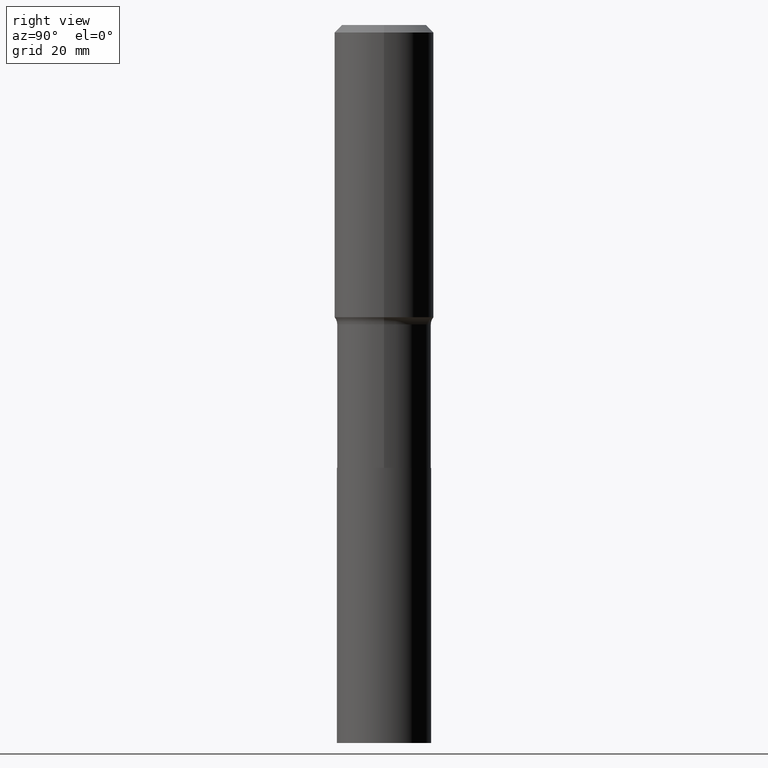
[diagram: clean part render]
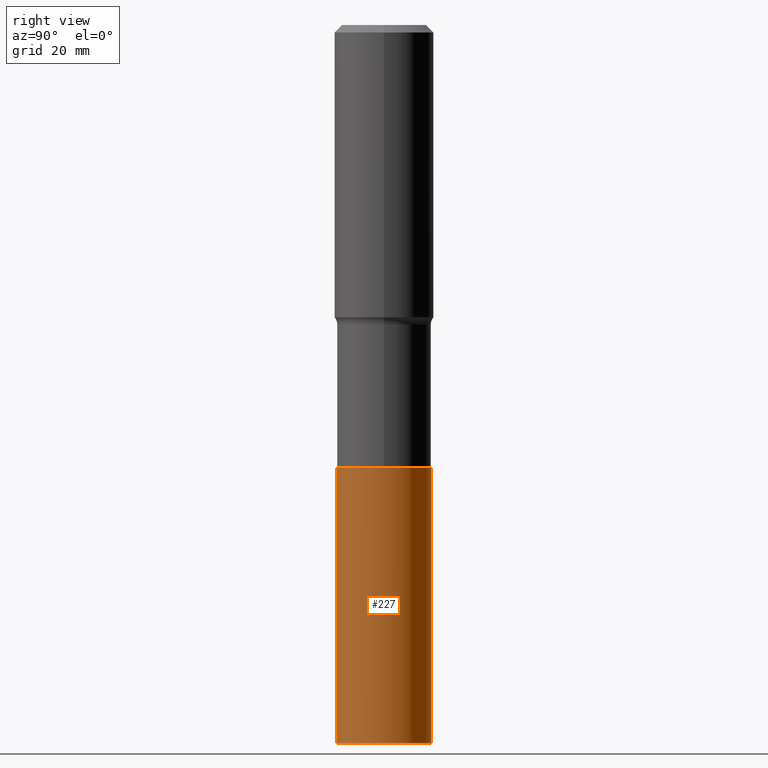
[diagram: same view with one face highlighted and labeled with its STEP entity id]
A machine part, right view. The second image highlights one B-rep face of the part: STEP entity #227.
In plain terms, the highlighted cylindrical surface (partial cylindrical patch) has radius 8.5331 mm, axis along (-0, 0, 1).
Its self-contained STEP definition (entity closure, byte-faithful):
#6 = FACE_OUTER_BOUND ( 'NONE', #354, .T. ) ;
#8 = LINE ( 'NONE', #434, #277 ) ;
#9 = CARTESIAN_POINT ( 'NONE',  ( -2.345926311568623595E-15, -0.3359500000000110176, -3.157099999999998907 ) ) ;
#12 = AXIS2_PLACEMENT_3D ( 'NONE', #156, #226, #114 ) ;
#24 = DIRECTION ( 'NONE',  ( -6.982962677686265133E-15, -1.000000000000000000, 3.252684022817994463E-15 ) ) ;
#27 = VERTEX_POINT ( 'NONE', #66 ) ;
#61 = DIRECTION ( 'NONE',  ( -2.445143667233141665E-29, 3.491946956328162536E-15, 1.000000000000000000 ) ) ;
#66 = CARTESIAN_POINT ( 'NONE',  ( 2.387068320786157736E-15, 0.3359499999999820963, -5.118100000000003647 ) ) ;
#72 = AXIS2_PLACEMENT_3D ( 'NONE', #261, #433, #200 ) ;
#79 = EDGE_CURVE ( 'NONE', #239, #27, #392, .T. ) ;
#81 = CARTESIAN_POINT ( 'NONE',  ( 2.387068320786182191E-15, 0.3359499999999890352, -3.157100000000001128 ) ) ;
#89 = ORIENTED_EDGE ( 'NONE', *, *, #79, .T. ) ;
#113 = DIRECTION ( 'NONE',  ( -2.445143667233141665E-29, 3.491946956328162536E-15, 1.000000000000000000 ) ) ;
#114 = DIRECTION ( 'NONE',  ( -6.982962677686265133E-15, -1.000000000000000000, 3.252684022817994463E-15 ) ) ;
#121 = EDGE_CURVE ( 'NONE', #239, #278, #330, .T. ) ;
#144 = CARTESIAN_POINT ( 'NONE',  ( 1.251551629945129188E-28, -1.787066371622123093E-14, -5.118100000000002758 ) ) ;
#156 = CARTESIAN_POINT ( 'NONE',  ( 7.720589568007094249E-29, -1.102295573486169565E-14, -3.157100000000000239 ) ) ;
#157 = ORIENTED_EDGE ( 'NONE', *, *, #121, .F. ) ;
#165 = ORIENTED_EDGE ( 'NONE', *, *, #279, .F. ) ;
#187 = CARTESIAN_POINT ( 'NONE',  ( -2.345926311568575475E-15, -0.3359500000000179010, -5.118100000000000982 ) ) ;
#200 = DIRECTION ( 'NONE',  ( -6.982962677686265133E-15, -1.000000000000000000, 3.252684022817994463E-15 ) ) ;
#219 = VERTEX_POINT ( 'NONE', #81 ) ;
#226 = DIRECTION ( 'NONE',  ( -2.445143667233141385E-29, 3.491946956328162536E-15, 1.000000000000000000 ) ) ;
#227 = ADVANCED_FACE ( 'NONE', ( #6 ), #230, .T. ) ;
#230 = CYLINDRICAL_SURFACE ( 'NONE', #72, 0.3359500000000000264 ) ;
#238 = ORIENTED_EDGE ( 'NONE', *, *, #372, .T. ) ;
#239 = VERTEX_POINT ( 'NONE', #187 ) ;
#261 = CARTESIAN_POINT ( 'NONE',  ( 7.720589568007094249E-29, -1.102295573486169565E-14, -3.157100000000000239 ) ) ;
#265 = VECTOR ( 'NONE', #61, 39.37007874015748143 ) ;
#277 = VECTOR ( 'NONE', #113, 39.37007874015748143 ) ;
#278 = VERTEX_POINT ( 'NONE', #9 ) ;
#279 = EDGE_CURVE ( 'NONE', #278, #219, #398, .T. ) ;
#286 = AXIS2_PLACEMENT_3D ( 'NONE', #144, #289, #24 ) ;
#288 = CARTESIAN_POINT ( 'NONE',  ( -2.345926311568623595E-15, -0.3359500000000110176, -3.157099999999998907 ) ) ;
#289 = DIRECTION ( 'NONE',  ( -2.445143667233141385E-29, 3.491946956328162536E-15, 1.000000000000000000 ) ) ;
#330 = LINE ( 'NONE', #288, #265 ) ;
#354 = EDGE_LOOP ( 'NONE', ( #89, #238, #165, #157 ) ) ;
#372 = EDGE_CURVE ( 'NONE', #27, #219, #8, .T. ) ;
#392 = CIRCLE ( 'NONE', #286, 0.3359500000000000264 ) ;
#398 = CIRCLE ( 'NONE', #12, 0.3359500000000000264 ) ;
#433 = DIRECTION ( 'NONE',  ( -2.445143667233141385E-29, 3.491946956328162536E-15, 1.000000000000000000 ) ) ;
#434 = CARTESIAN_POINT ( 'NONE',  ( 2.387068320786133281E-15, 0.3359499999999890352, -3.157100000000001128 ) ) ;